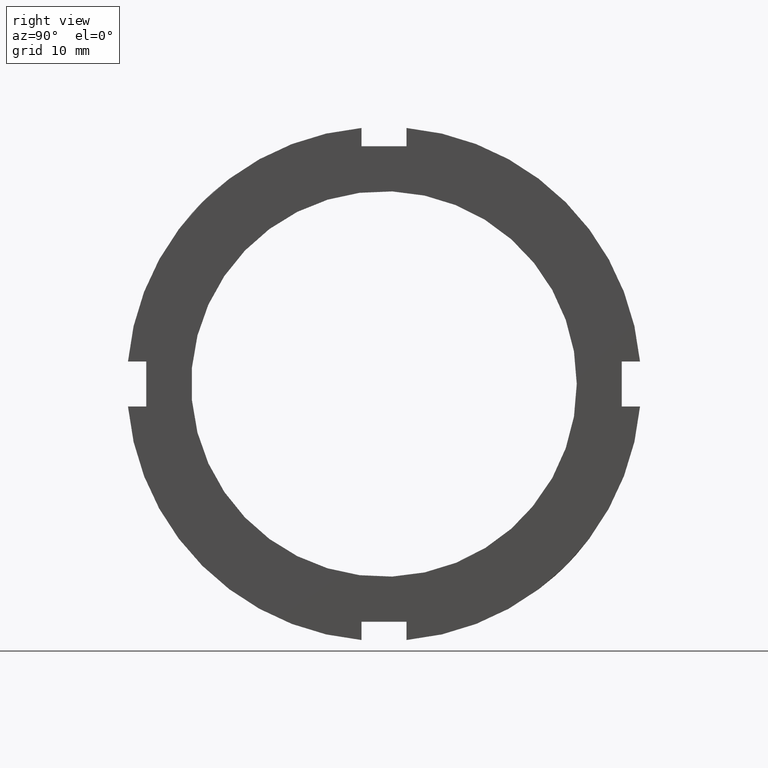
[diagram: clean part render]
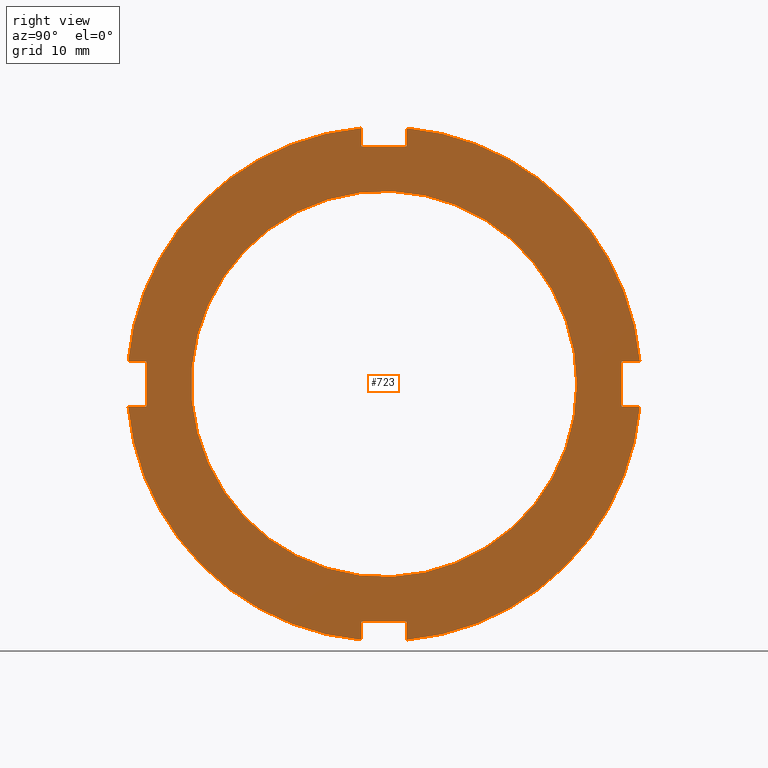
[diagram: same view with one face highlighted and labeled with its STEP entity id]
A machine part, right view. The second image highlights one B-rep face of the part: STEP entity #723.
In plain terms, the highlighted planar face has unit normal (1, 0, 0).
Its self-contained STEP definition (entity closure, byte-faithful):
#259=CARTESIAN_POINT('',(15.999999999999993,-3.500000000000005,-36.999999999999993));
#260=VERTEX_POINT('',#259);
#267=CARTESIAN_POINT('',(15.999999999999993,-3.500000000000006,-39.846580781793556));
#268=VERTEX_POINT('',#267);
#269=CARTESIAN_POINT('',(15.999999999999993,-3.500000000000005,-39.846580781793556));
#270=DIRECTION('',(0.0,0.0,1.0));
#271=VECTOR('',#270,2.846580781793563);
#272=LINE('',#269,#271);
#273=EDGE_CURVE('',#268,#260,#272,.T.);
#299=CARTESIAN_POINT('',(15.999999999999993,3.499999999999992,-39.846580781793556));
#300=VERTEX_POINT('',#299);
#307=CARTESIAN_POINT('',(15.999999999999993,3.499999999999992,-36.999999999999993));
#308=VERTEX_POINT('',#307);
#309=CARTESIAN_POINT('',(15.999999999999993,3.499999999999993,-36.999999999999993));
#310=DIRECTION('',(0.0,0.0,-1.0));
#311=VECTOR('',#310,2.846580781793563);
#312=LINE('',#309,#311);
#313=EDGE_CURVE('',#308,#300,#312,.T.);
#336=CARTESIAN_POINT('',(15.999999999999993,-3.500000000000000,-36.999999999999986));
#337=DIRECTION('',(0.0,1.0,0.0));
#338=VECTOR('',#337,6.999999999999993);
#339=LINE('',#336,#338);
#340=EDGE_CURVE('',#260,#308,#339,.T.);
#361=CARTESIAN_POINT('',(15.999999999999993,-36.999999999999993,3.500000000000003));
#362=VERTEX_POINT('',#361);
#369=CARTESIAN_POINT('',(15.999999999999993,-39.846580781793556,3.500000000000003));
#370=VERTEX_POINT('',#369);
#371=CARTESIAN_POINT('',(15.999999999999993,-39.846580781793548,3.500000000000004));
#372=DIRECTION('',(0.0,1.0,0.0));
#373=VECTOR('',#372,2.846580781793556);
#374=LINE('',#371,#373);
#375=EDGE_CURVE('',#370,#362,#374,.T.);
#401=CARTESIAN_POINT('',(15.999999999999993,-39.846580781793556,-3.499999999999994));
#402=VERTEX_POINT('',#401);
#409=CARTESIAN_POINT('',(15.999999999999993,-36.999999999999993,-3.499999999999994));
#410=VERTEX_POINT('',#409);
#411=CARTESIAN_POINT('',(15.999999999999993,-36.999999999999993,-3.499999999999994));
#412=DIRECTION('',(0.0,-1.0,0.0));
#413=VECTOR('',#412,2.846580781793563);
#414=LINE('',#411,#413);
#415=EDGE_CURVE('',#410,#402,#414,.T.);
#438=CARTESIAN_POINT('',(15.999999999999993,-36.999999999999993,3.500000000000003));
#439=DIRECTION('',(0.0,0.0,-1.0));
#440=VECTOR('',#439,6.999999999999996);
#441=LINE('',#438,#440);
#442=EDGE_CURVE('',#362,#410,#441,.T.);
#463=CARTESIAN_POINT('',(15.999999999999993,3.500000000000001,36.999999999999993));
#464=VERTEX_POINT('',#463);
#471=CARTESIAN_POINT('',(15.999999999999993,3.500000000000001,39.846580781793556));
#472=VERTEX_POINT('',#471);
#473=CARTESIAN_POINT('',(15.999999999999993,3.500000000000000,39.846580781793556));
#474=DIRECTION('',(0.0,0.0,-1.0));
#475=VECTOR('',#474,2.846580781793563);
#476=LINE('',#473,#475);
#477=EDGE_CURVE('',#472,#464,#476,.T.);
#503=CARTESIAN_POINT('',(15.999999999999993,-3.499999999999996,39.846580781793556));
#504=VERTEX_POINT('',#503);
#511=CARTESIAN_POINT('',(15.999999999999993,-3.499999999999996,36.999999999999993));
#512=VERTEX_POINT('',#511);
#513=CARTESIAN_POINT('',(15.999999999999993,-3.499999999999998,36.999999999999993));
#514=DIRECTION('',(0.0,0.0,1.0));
#515=VECTOR('',#514,2.846580781793563);
#516=LINE('',#513,#515);
#517=EDGE_CURVE('',#512,#504,#516,.T.);
#540=CARTESIAN_POINT('',(15.999999999999993,3.500000000000000,36.999999999999993));
#541=DIRECTION('',(0.0,-1.0,0.0));
#542=VECTOR('',#541,6.999999999999996);
#543=LINE('',#540,#542);
#544=EDGE_CURVE('',#464,#512,#543,.T.);
#556=CARTESIAN_POINT('',(15.999999999999993,39.846580781793556,3.499999999999999));
#557=VERTEX_POINT('',#556);
#558=CARTESIAN_POINT('',(15.999999999999988,0.0,0.0));
#559=DIRECTION('',(1.0,0.0,0.0));
#560=DIRECTION('',(0.0,1.0,0.0));
#561=AXIS2_PLACEMENT_3D('',#558,#559,#560);
#562=CIRCLE('',#561,39.999999999999993);
#563=EDGE_CURVE('',#557,#472,#562,.T.);
#589=CARTESIAN_POINT('',(15.999999999999988,0.0,0.0));
#590=DIRECTION('',(1.0,0.0,0.0));
#591=DIRECTION('',(0.0,1.0,0.0));
#592=AXIS2_PLACEMENT_3D('',#589,#590,#591);
#593=CIRCLE('',#592,39.999999999999993);
#594=EDGE_CURVE('',#504,#370,#593,.T.);
#625=CARTESIAN_POINT('',(15.999999999999993,39.846580781793556,-3.499999999999999));
#626=VERTEX_POINT('',#625);
#633=CARTESIAN_POINT('',(15.999999999999988,0.0,0.0));
#634=DIRECTION('',(1.0,0.0,0.0));
#635=DIRECTION('',(0.0,1.0,0.0));
#636=AXIS2_PLACEMENT_3D('',#633,#634,#635);
#637=CIRCLE('',#636,39.999999999999993);
#638=EDGE_CURVE('',#300,#626,#637,.T.);
#652=CARTESIAN_POINT('',(15.999999999999988,0.0,0.0));
#653=DIRECTION('',(1.0,0.0,0.0));
#654=DIRECTION('',(0.0,1.0,0.0));
#655=AXIS2_PLACEMENT_3D('',#652,#653,#654);
#656=CIRCLE('',#655,39.999999999999993);
#657=EDGE_CURVE('',#402,#268,#656,.T.);
#670=CARTESIAN_POINT('',(15.999999999999993,35.0,0.0));
#671=DIRECTION('',(1.0,0.0,0.0));
#672=DIRECTION('',(0.0,0.0,-1.0));
#673=AXIS2_PLACEMENT_3D('',#670,#671,#672);
#674=PLANE('',#673);
#675=ORIENTED_EDGE('',*,*,#273,.T.);
#676=ORIENTED_EDGE('',*,*,#340,.T.);
#677=ORIENTED_EDGE('',*,*,#313,.T.);
#678=ORIENTED_EDGE('',*,*,#638,.T.);
#679=CARTESIAN_POINT('',(15.999999999999993,36.999999999999993,-3.499999999999999));
#680=VERTEX_POINT('',#679);
#681=CARTESIAN_POINT('',(15.999999999999993,39.846580781793556,-3.499999999999999));
#682=DIRECTION('',(0.0,-1.0,0.0));
#683=VECTOR('',#682,2.846580781793556);
#684=LINE('',#681,#683);
#685=EDGE_CURVE('',#626,#680,#684,.T.);
#686=ORIENTED_EDGE('',*,*,#685,.T.);
#687=CARTESIAN_POINT('',(15.999999999999993,36.999999999999993,3.499999999999999));
#688=VERTEX_POINT('',#687);
#689=CARTESIAN_POINT('',(15.999999999999993,36.999999999999993,-3.499999999999999));
#690=DIRECTION('',(0.0,0.0,1.0));
#691=VECTOR('',#690,6.999999999999998);
#692=LINE('',#689,#691);
#693=EDGE_CURVE('',#680,#688,#692,.T.);
#694=ORIENTED_EDGE('',*,*,#693,.T.);
#695=CARTESIAN_POINT('',(15.999999999999993,36.999999999999993,3.499999999999999));
#696=DIRECTION('',(0.0,1.0,0.0));
#697=VECTOR('',#696,2.846580781793563);
#698=LINE('',#695,#697);
#699=EDGE_CURVE('',#688,#557,#698,.T.);
#700=ORIENTED_EDGE('',*,*,#699,.T.);
#701=ORIENTED_EDGE('',*,*,#563,.T.);
#702=ORIENTED_EDGE('',*,*,#477,.T.);
#703=ORIENTED_EDGE('',*,*,#544,.T.);
#704=ORIENTED_EDGE('',*,*,#517,.T.);
#705=ORIENTED_EDGE('',*,*,#594,.T.);
#706=ORIENTED_EDGE('',*,*,#375,.T.);
#707=ORIENTED_EDGE('',*,*,#442,.T.);
#708=ORIENTED_EDGE('',*,*,#415,.T.);
#709=ORIENTED_EDGE('',*,*,#657,.T.);
#710=EDGE_LOOP('',(#675,#676,#677,#678,#686,#694,#700,#701,#702,#703,#704,#705,#706,#707,#708,#709));
#711=FACE_OUTER_BOUND('',#710,.T.);
#712=CARTESIAN_POINT('',(15.999999999999995,30.0,0.0));
#713=VERTEX_POINT('',#712);
#714=CARTESIAN_POINT('',(15.999999999999995,0.0,0.0));
#715=DIRECTION('',(1.0,0.0,0.0));
#716=DIRECTION('',(0.0,1.0,0.0));
#717=AXIS2_PLACEMENT_3D('',#714,#715,#716);
#718=CIRCLE('',#717,30.0);
#719=EDGE_CURVE('',#713,#713,#718,.T.);
#720=ORIENTED_EDGE('',*,*,#719,.F.);
#721=EDGE_LOOP('',(#720));
#722=FACE_BOUND('',#721,.T.);
#723=ADVANCED_FACE('',(#711,#722),#674,.T.);